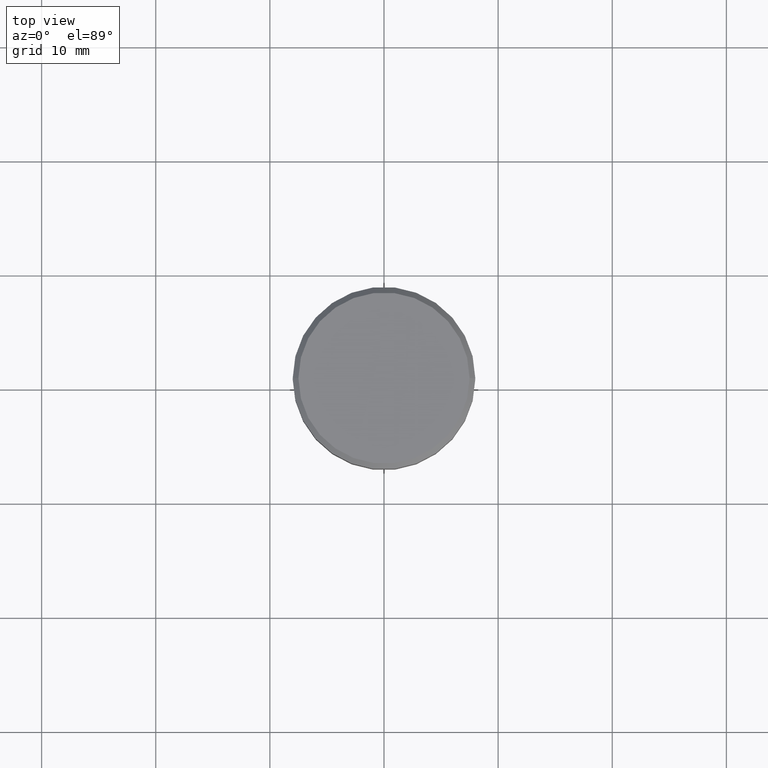
[diagram: clean part render]
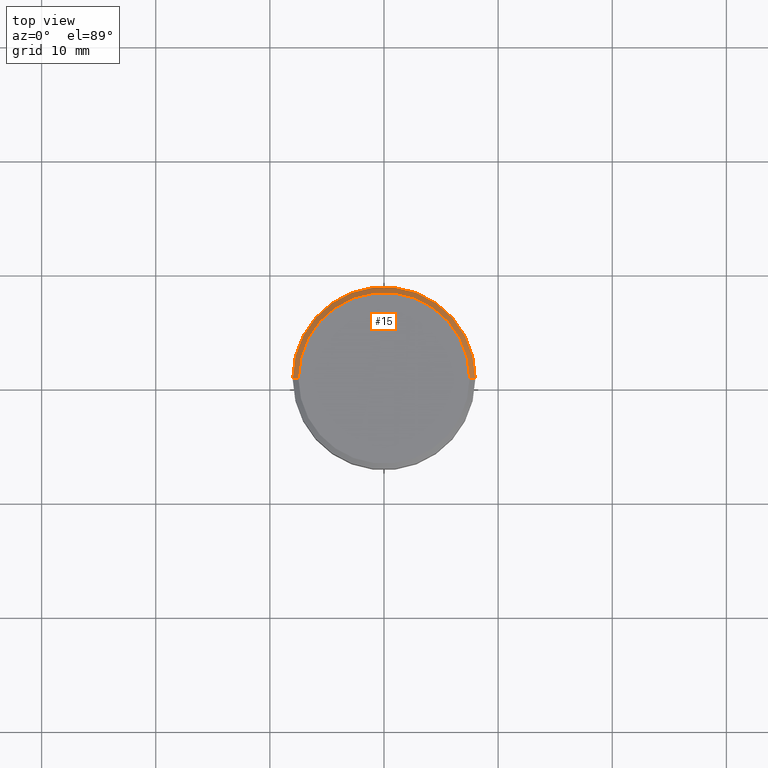
[diagram: same view with one face highlighted and labeled with its STEP entity id]
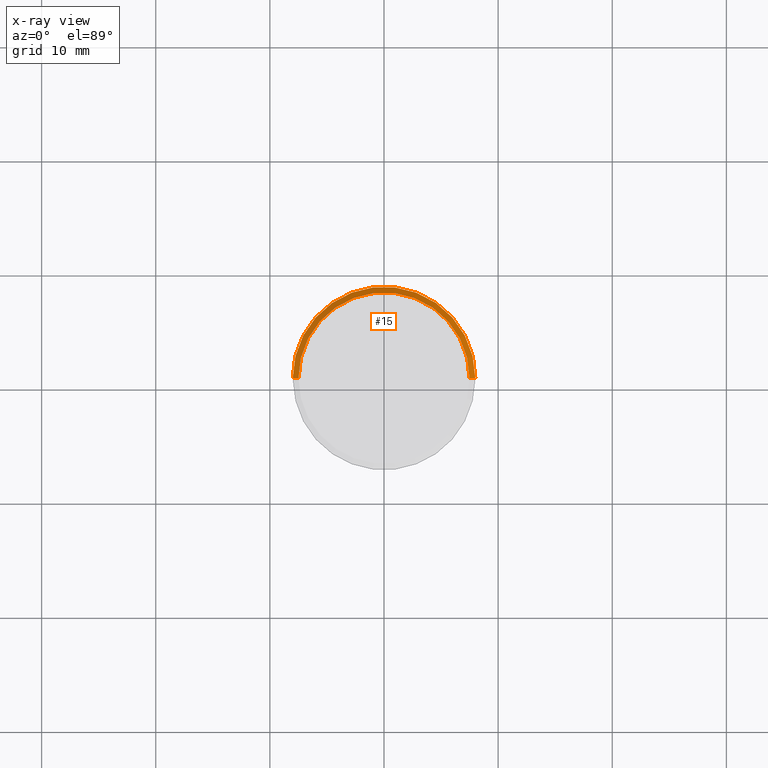
[diagram: x-ray of the same camera — body ghosted, the highlighted face saturated]
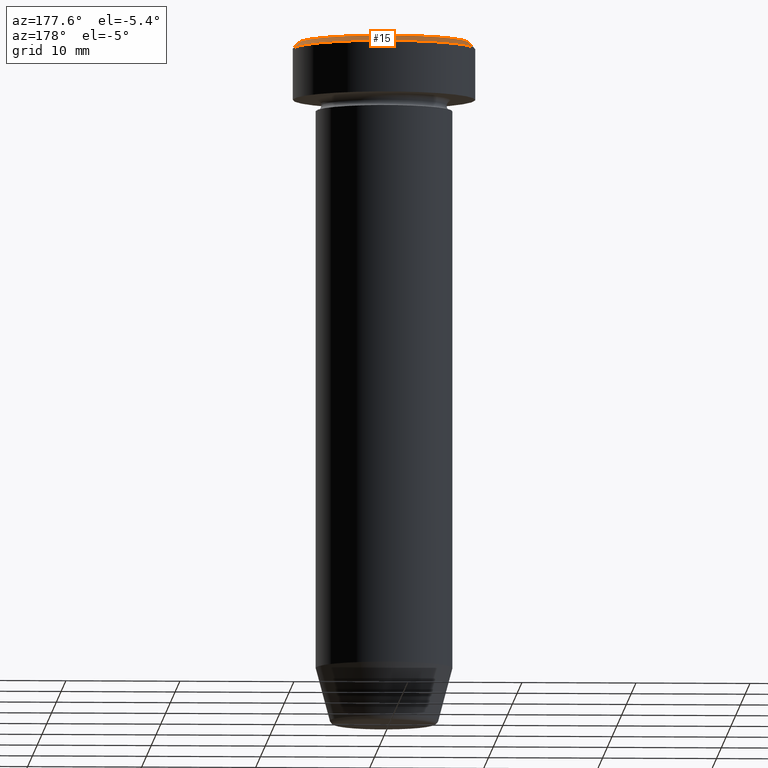
[diagram: same view with one face highlighted and labeled with its STEP entity id]
A machine part, top view. The second image highlights one B-rep face of the part: STEP entity #15.
The next image is the same camera in x-ray: the body ghosted, the highlighted face saturated — about 0% of this face is hidden behind the body in this view.
A second angle (auxiliary view) of the same face is appended — the face is thin or edge-on in the first view.
In plain terms, the highlighted conical surface has half-angle 45 deg.
Its self-contained STEP definition (entity closure, byte-faithful):
#5 = VECTOR ( 'NONE', #447, 1000.000000000000114 ) ;
#15 = ADVANCED_FACE ( 'NONE', ( #380 ), #82, .T. ) ;
#19 = CIRCLE ( 'NONE', #415, 7.499999999999992895 ) ;
#22 = VERTEX_POINT ( 'NONE', #467 ) ;
#45 = ORIENTED_EDGE ( 'NONE', *, *, #499, .F. ) ;
#70 = AXIS2_PLACEMENT_3D ( 'NONE', #487, #206, #540 ) ;
#82 = CONICAL_SURFACE ( 'NONE', #173, 7.499999999999992895, 0.7853981633974482790 ) ;
#105 = CIRCLE ( 'NONE', #70, 8.000000000000000000 ) ;
#106 = DIRECTION ( 'NONE',  ( 0.7071067811865474617, 8.659560562354932858E-17, -0.7071067811865474617 ) ) ;
#113 = CARTESIAN_POINT ( 'NONE',  ( 0.000000000000000000, 0.000000000000000000, 0.000000000000000000 ) ) ;
#119 = VERTEX_POINT ( 'NONE', #333 ) ;
#128 = EDGE_LOOP ( 'NONE', ( #408, #305, #45, #550 ) ) ;
#151 = DIRECTION ( 'NONE',  ( -1.000000000000000000, 0.000000000000000000, 0.000000000000000000 ) ) ;
#156 = DIRECTION ( 'NONE',  ( -0.000000000000000000, -0.000000000000000000, 1.000000000000000000 ) ) ;
#173 = AXIS2_PLACEMENT_3D ( 'NONE', #188, #336, #151 ) ;
#188 = CARTESIAN_POINT ( 'NONE',  ( 0.000000000000000000, 0.000000000000000000, 0.000000000000000000 ) ) ;
#206 = DIRECTION ( 'NONE',  ( 0.000000000000000000, 0.000000000000000000, -1.000000000000000000 ) ) ;
#228 = EDGE_CURVE ( 'NONE', #119, #22, #19, .T. ) ;
#243 = EDGE_CURVE ( 'NONE', #119, #598, #340, .T. ) ;
#276 = VECTOR ( 'NONE', #106, 1000.000000000000114 ) ;
#305 = ORIENTED_EDGE ( 'NONE', *, *, #243, .T. ) ;
#306 = CARTESIAN_POINT ( 'NONE',  ( -7.499999999999992895, 0.000000000000000000, 0.000000000000000000 ) ) ;
#333 = CARTESIAN_POINT ( 'NONE',  ( 7.499999999999992895, 9.491012693391981871E-16, 0.000000000000000000 ) ) ;
#336 = DIRECTION ( 'NONE',  ( 0.000000000000000000, 0.000000000000000000, -1.000000000000000000 ) ) ;
#340 = LINE ( 'NONE', #529, #276 ) ;
#380 = FACE_OUTER_BOUND ( 'NONE', #128, .T. ) ;
#405 = VERTEX_POINT ( 'NONE', #476 ) ;
#406 = CARTESIAN_POINT ( 'NONE',  ( 8.000000000000000000, 0.000000000000000000, -0.5000000000000073275 ) ) ;
#408 = ORIENTED_EDGE ( 'NONE', *, *, #228, .F. ) ;
#415 = AXIS2_PLACEMENT_3D ( 'NONE', #113, #156, #434 ) ;
#434 = DIRECTION ( 'NONE',  ( 1.000000000000000000, 0.000000000000000000, 0.000000000000000000 ) ) ;
#447 = DIRECTION ( 'NONE',  ( -0.7071067811865474617, 0.000000000000000000, -0.7071067811865474617 ) ) ;
#467 = CARTESIAN_POINT ( 'NONE',  ( -7.499999999999992895, 0.000000000000000000, 0.000000000000000000 ) ) ;
#476 = CARTESIAN_POINT ( 'NONE',  ( -8.000000000000000000, 9.797174393178825657E-16, -0.5000000000000073275 ) ) ;
#487 = CARTESIAN_POINT ( 'NONE',  ( 0.000000000000000000, 0.000000000000000000, -0.5000000000000073275 ) ) ;
#499 = EDGE_CURVE ( 'NONE', #405, #598, #105, .T. ) ;
#513 = EDGE_CURVE ( 'NONE', #22, #405, #576, .T. ) ;
#529 = CARTESIAN_POINT ( 'NONE',  ( 7.499999999999992895, 9.184850993605140056E-16, 0.000000000000000000 ) ) ;
#540 = DIRECTION ( 'NONE',  ( 1.000000000000000000, 0.000000000000000000, 0.000000000000000000 ) ) ;
#550 = ORIENTED_EDGE ( 'NONE', *, *, #513, .F. ) ;
#576 = LINE ( 'NONE', #306, #5 ) ;
#598 = VERTEX_POINT ( 'NONE', #406 ) ;